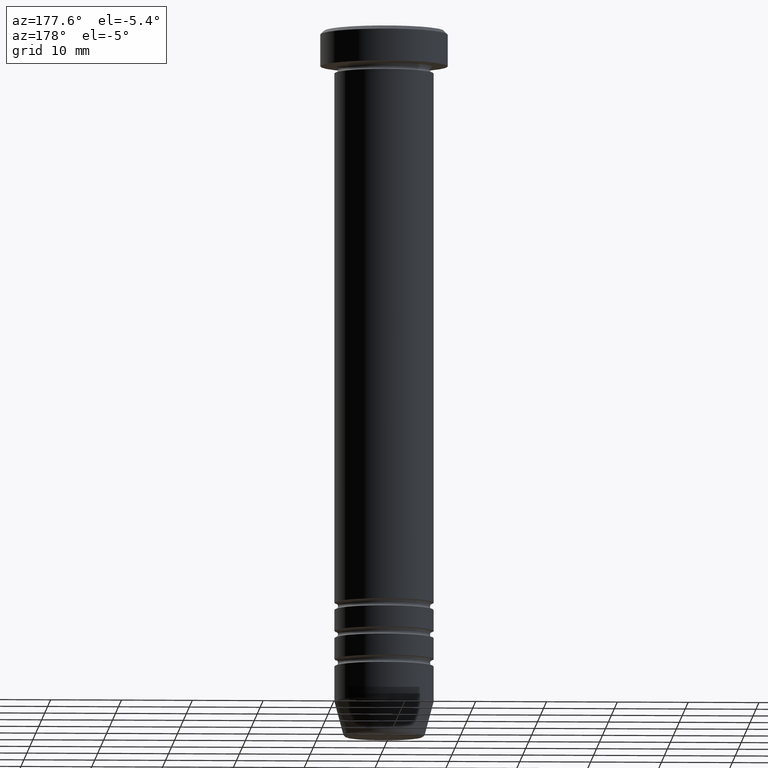
[diagram: clean part render]
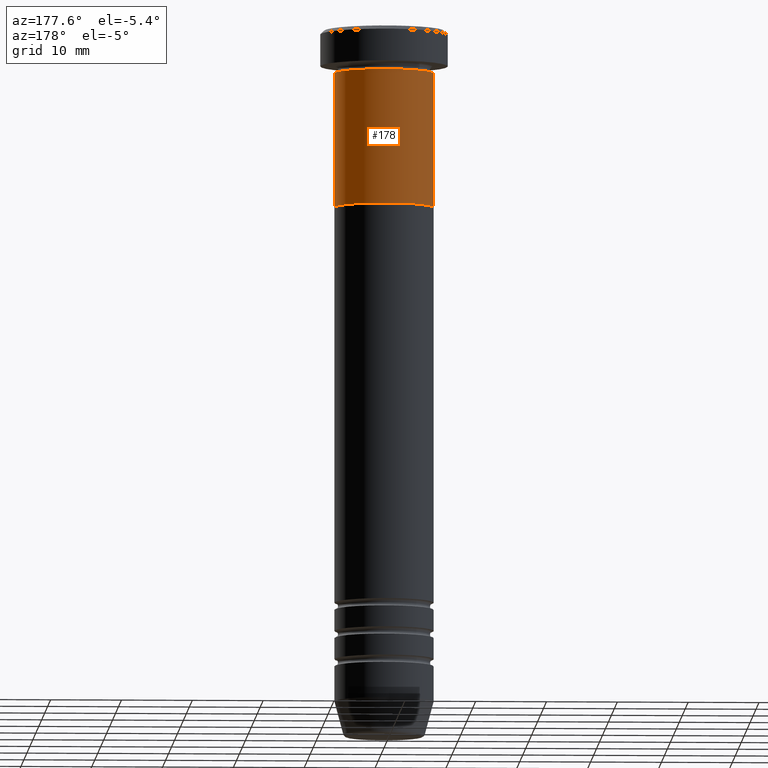
[diagram: same view with one face highlighted and labeled with its STEP entity id]
A machine part, auxiliary view. The second image highlights one B-rep face of the part: STEP entity #178.
In plain terms, the highlighted cylindrical surface (partial cylindrical patch) has radius 7 mm, axis along (-0, -0, 1).
Its self-contained STEP definition (entity closure, byte-faithful):
#35 = VERTEX_POINT ( 'NONE', #142 ) ;
#40 = DIRECTION ( 'NONE',  ( 1.000000000000000000, 0.000000000000000000, 0.000000000000000000 ) ) ;
#76 = VECTOR ( 'NONE', #1043, 1000.000000000000000 ) ;
#102 = CARTESIAN_POINT ( 'NONE',  ( 7.000000000000000000, 0.000000000000000000, -25.00000000000000000 ) ) ;
#122 = EDGE_CURVE ( 'NONE', #288, #367, #205, .T. ) ;
#140 = CARTESIAN_POINT ( 'NONE',  ( 7.000000000000000000, 0.000000000000000000, -6.000000000000001776 ) ) ;
#142 = CARTESIAN_POINT ( 'NONE',  ( -7.000000000000000000, 8.572527594031473190E-16, -25.00000000000000000 ) ) ;
#157 = DIRECTION ( 'NONE',  ( -0.000000000000000000, -0.000000000000000000, 1.000000000000000000 ) ) ;
#178 = ADVANCED_FACE ( 'NONE', ( #661 ), #405, .T. ) ;
#190 = DIRECTION ( 'NONE',  ( 1.000000000000000000, 0.000000000000000000, 0.000000000000000000 ) ) ;
#205 = CIRCLE ( 'NONE', #1014, 7.000000000000000000 ) ;
#214 = LINE ( 'NONE', #552, #76 ) ;
#217 = ORIENTED_EDGE ( 'NONE', *, *, #626, .F. ) ;
#276 = DIRECTION ( 'NONE',  ( -0.000000000000000000, -0.000000000000000000, 1.000000000000000000 ) ) ;
#288 = VERTEX_POINT ( 'NONE', #140 ) ;
#349 = AXIS2_PLACEMENT_3D ( 'NONE', #849, #352, #190 ) ;
#352 = DIRECTION ( 'NONE',  ( -0.000000000000000000, -0.000000000000000000, 1.000000000000000000 ) ) ;
#367 = VERTEX_POINT ( 'NONE', #927 ) ;
#401 = VECTOR ( 'NONE', #276, 1000.000000000000000 ) ;
#405 = CYLINDRICAL_SURFACE ( 'NONE', #834, 7.000000000000000000 ) ;
#462 = CARTESIAN_POINT ( 'NONE',  ( -7.000000000000000000, 8.572527594031473190E-16, 0.000000000000000000 ) ) ;
#493 = EDGE_CURVE ( 'NONE', #35, #367, #869, .T. ) ;
#516 = ORIENTED_EDGE ( 'NONE', *, *, #493, .T. ) ;
#552 = CARTESIAN_POINT ( 'NONE',  ( 7.000000000000000000, 0.000000000000000000, 0.000000000000000000 ) ) ;
#626 = EDGE_CURVE ( 'NONE', #657, #288, #214, .T. ) ;
#656 = CARTESIAN_POINT ( 'NONE',  ( 0.000000000000000000, 0.000000000000000000, 0.000000000000000000 ) ) ;
#657 = VERTEX_POINT ( 'NONE', #102 ) ;
#661 = FACE_OUTER_BOUND ( 'NONE', #1024, .T. ) ;
#716 = CIRCLE ( 'NONE', #349, 7.000000000000000000 ) ;
#753 = ORIENTED_EDGE ( 'NONE', *, *, #1022, .T. ) ;
#834 = AXIS2_PLACEMENT_3D ( 'NONE', #656, #157, #976 ) ;
#849 = CARTESIAN_POINT ( 'NONE',  ( 0.000000000000000000, 0.000000000000000000, -25.00000000000000000 ) ) ;
#869 = LINE ( 'NONE', #462, #401 ) ;
#897 = ORIENTED_EDGE ( 'NONE', *, *, #122, .F. ) ;
#927 = CARTESIAN_POINT ( 'NONE',  ( -7.000000000000000000, 8.572527594031473190E-16, -6.000000000000001776 ) ) ;
#958 = DIRECTION ( 'NONE',  ( -0.000000000000000000, -0.000000000000000000, 1.000000000000000000 ) ) ;
#976 = DIRECTION ( 'NONE',  ( 1.000000000000000000, 0.000000000000000000, 0.000000000000000000 ) ) ;
#1014 = AXIS2_PLACEMENT_3D ( 'NONE', #1037, #958, #40 ) ;
#1022 = EDGE_CURVE ( 'NONE', #657, #35, #716, .T. ) ;
#1024 = EDGE_LOOP ( 'NONE', ( #753, #516, #897, #217 ) ) ;
#1037 = CARTESIAN_POINT ( 'NONE',  ( 0.000000000000000000, 0.000000000000000000, -6.000000000000001776 ) ) ;
#1043 = DIRECTION ( 'NONE',  ( -0.000000000000000000, -0.000000000000000000, 1.000000000000000000 ) ) ;